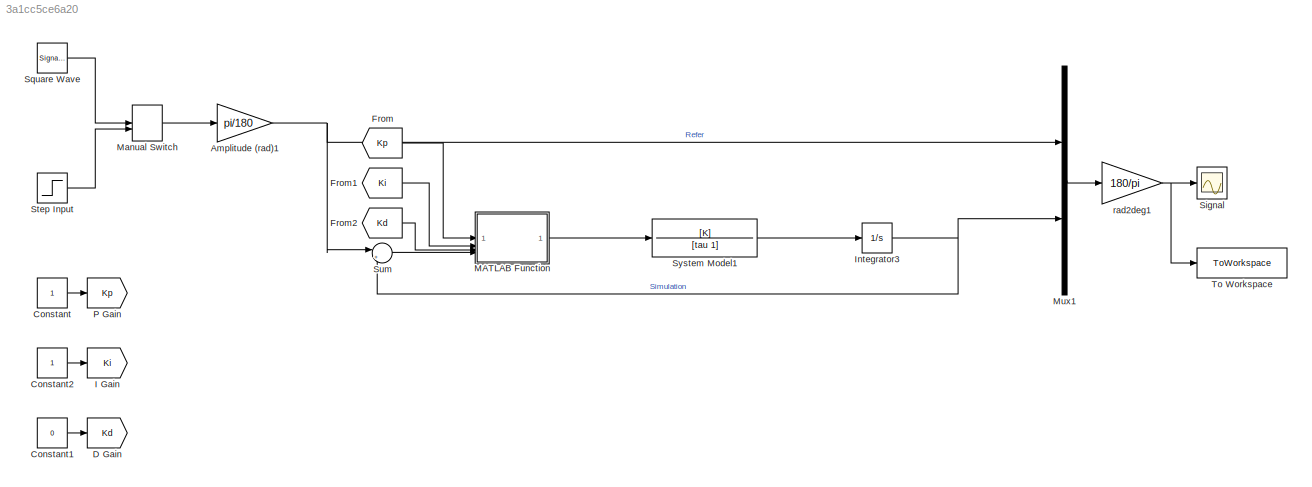
MODEL slx_3a1cc5ce6a20
KIND model
CONFIG AbsTol = auto
CONFIG EnableMultiTasking = on
CONFIG FixedStep = 0.002
CONFIG MaxStep = auto
CONFIG MinStep = auto
CONFIG RelTol = 1e-3
CONFIG SampleTimeConstraint = Unconstrained
CONFIG SolverName = FixedStepAuto
CONFIG StartTime = 0.0
CONFIG StopTime = 20
BLOCK [Gain] Amplitude (rad)1
  Gain = pi/180
BLOCK [Constant] Constant
BLOCK [Constant] Constant1
  Value = 0
BLOCK [Constant] Constant2
BLOCK [Goto] D Gain
  GotoTag = Kd
BLOCK [From] From
  GotoTag = Kp
BLOCK [From] From1
  GotoTag = Ki
BLOCK [From] From2
  GotoTag = Kd
BLOCK [Goto] I Gain
  GotoTag = Ki
BLOCK [Integrator] Integrator3
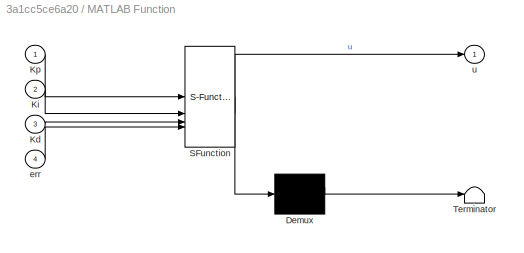
BLOCK [SubSystem] MATLAB Function
  ErrorFcn = Stateflow.Translate.translate
  PermitHierarchicalResolution = ExplicitOnly
  SFBlockType = MATLAB Function
  TreatAsAtomicUnit = on
BLOCK [Demux] MATLAB Function/ Demux 
  Outputs = 1
BLOCK [S-Function] MATLAB Function/ SFunction 
  EnableBusSupport = off
  FunctionName = sf_sfun
  PortCounts = [4 2]
  SFcnIsStateOwnerBlock = off
  SFunctionDeploymentMode = off
  Tag = Stateflow S-Function 2
BLOCK [Terminator] MATLAB Function/ Terminator 
BLOCK [Inport] MATLAB Function/Kd
  Port = 3
BLOCK [Inport] MATLAB Function/Ki
  Port = 2
BLOCK [Inport] MATLAB Function/Kp
BLOCK [Inport] MATLAB Function/err
  Port = 4
BLOCK [Outport] MATLAB Function/u
BLOCK [ManualSwitch] Manual Switch
BLOCK [Mux] Mux1
  DisplayOption = bar
  Inputs = 2
BLOCK [Goto] P Gain
  GotoTag = Kp
BLOCK [Scope] Signal
  ActiveDisplayYMaximum = 95.171209308998669
  ActiveDisplayYMinimum = -88.909851539823222
  DataLogging = on
  DataLoggingDecimateData = on
  DataLoggingDecimation = 1
  DataLoggingLimitDataPoints = on
  DataLoggingMaxPoints = 25000
  DataLoggingSaveFormat = Array
  Floating = off
  GraphicalSettings = {"Style":{"BackgroundColor":[0.12941176470588237,0.12941176470588237,0.12941176470588237],"AxesColor":[0.07058823529411765,0.07058823529411765,0.07058823529411765],"LabelsColor":[0.8509803921568627,0.8509803921568627,0.8509803921568627],"PreserveColors":false,"Visible":[true,true],"LineStyle":["-","-"],"LineWidth":[1.5,1.5],"BarWidth":[0.9,0.9],"LineColor":["auto","auto"],"LineFaceAlpha":[1,1],"Li...<+2162ch>
  MultipleDisplayCache = [{"MaxYLimMag":152.67463,"MaxYLimReal":95.171209308998669,"MinYLimMag":0,"MinYLimReal":-88.909851539823222,"PlotAsMagnitudePhase":false,"ShowGrid":true,"ShowLegend":true,"Title":"%<SignalLabel>","YLabel":""}]
  NumInputPorts = 1
  ScopeFrameLocation = window
  ShowLegend = on
  TimeSpan = 20
  WasSavedAsWebScope = on
  WindowPosition = [809.000000,306.000000,860.000000,517.000000,]
BLOCK [SignalGenerator] Square Wave
  Amplitude = 45
  Frequency = 0.1
  WaveForm = square
BLOCK [Step] Step Input
  SampleTime = 0
BLOCK [Sum] Sum
  Inputs = |+-
BLOCK [TransferFcn] System Model1
  Denominator = [tau 1]
  Numerator = [K]
BLOCK [ToWorkspace] To Workspace
  FixptAsFi = on
  MaxDataPoints = inf
  SampleTime = -1
  SaveFormat = Timeseries
  VariableName = simout
BLOCK [Gain] rad2deg1
  Gain = 180/pi
NET Amplitude (rad)1:1 -> Mux1:1, Sum:1
LINE Constant1:1 -> D Gain:1
LINE Constant2:1 -> I Gain:1
LINE Constant:1 -> P Gain:1
LINE From1:1 -> MATLAB Function:2
LINE From2:1 -> MATLAB Function:3
LINE From:1 -> MATLAB Function:1
NET Integrator3:1 -> Mux1:2, Sum:2
LINE MATLAB Function:1 -> System Model1:1
LINE Manual Switch:1 -> Amplitude (rad)1:1
LINE Mux1:1 -> rad2deg1:1
LINE Square Wave:1 -> Manual Switch:1
LINE Step Input:1 -> Manual Switch:2
LINE Sum:1 -> MATLAB Function:4
LINE System Model1:1 -> Integrator3:1
NET rad2deg1:1 -> Signal:1, To Workspace:1
note: NET lines group one-source signal fan-out (src -> all destinations, sorted); 1:1 wires keep LINE
CHART MATLAB Function states=1 transitions=1
  STATE_LABEL 'eML_blk_kernel()'
  STATE_LABEL 'SCRIPT:\nfunction u = fcn(Kp, Ki, Kd, err)\n    %#codegen\n    persistent i_err prev_err dt\n    \n    if isempty(i_err)\n        i_err = 0;\n        prev_err = 0;\n        dt = 0.001; % or sample time\n    end\n\n    i_err = i_err + err * dt;\n    d_err = (err - prev_err) / dt;\n\n    u = Kp*err + Ki*i_err + Kd*d_err;\n\n    prev_err = err;\nend\n'
CHART  states=0 transitions=0
